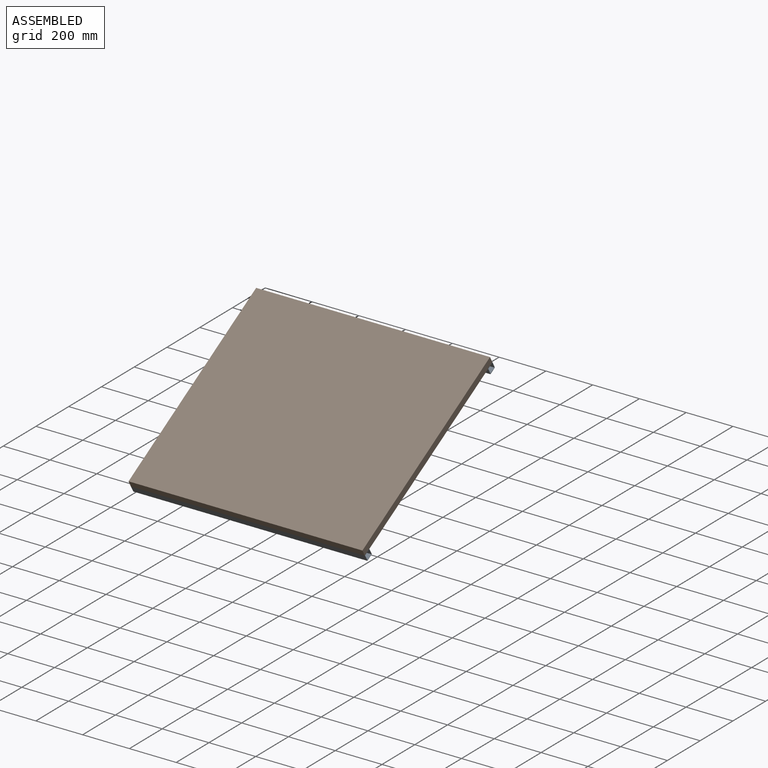
[diagram: assembled view]
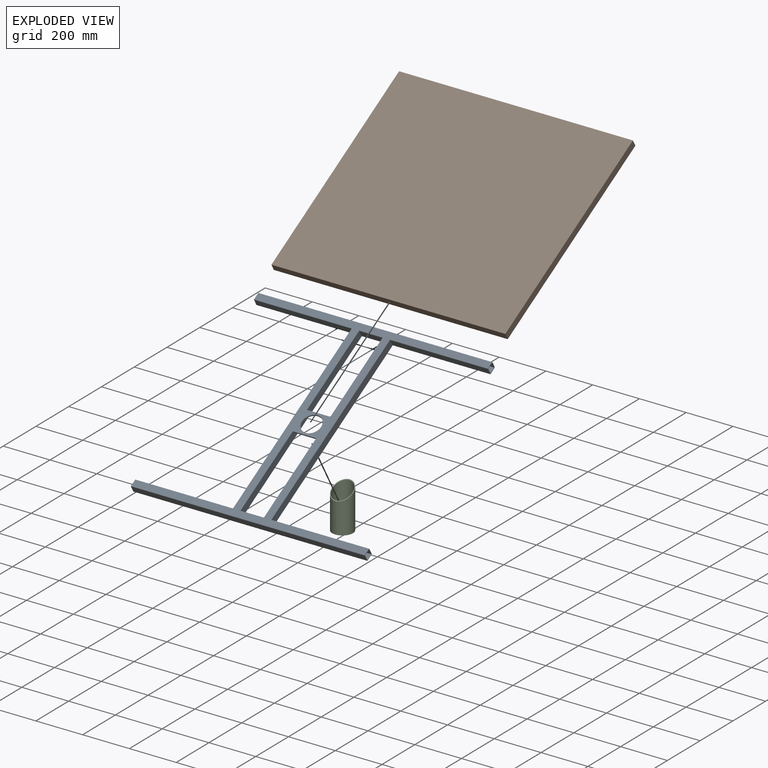
[diagram: exploded view]
GUIDED TOUR — MATED ASSEMBLY (Onshape document c7f52c63a3ec20beb6d5d1e3, AutoMate assembly c7f52c63a3ec20beb6d5d1e3_814e352ab854153cef78f4b2_82f58f986dd7bf3654ae3f0d_default)

This assembly has 3 components, labeled P0..P2 below (a component is one placed occurrence of a part; the same part can appear more than once), held together by 2 mates. A mate is a constraint between two components; its type names the relative motion it leaves free:
  FASTENED — locks the two components together rigidly (no relative motion),
  PLANAR — leaves sliding in the plane through the listed point (normal = the listed direction) and rotation about that normal free.
Axis/direction vectors are unit vectors and 'through' points are millimeter coordinates, both in the assembly's world frame.

MATES
  1. FASTENED "Fastened 1": P0 <-> P2, direction (0.000, 0.500, -0.866) through (-33.33, -36.92, -54.90) mm
  2. PLANAR "Planar 1": P1 <-> P0, direction (0.000, -0.866, -0.500) through (-33.33, -428.65, -276.40) mm

ASSEMBLY ORDER
  1. P1 — the base component [order verified]
  2. P0 [order verified]
  3. P2 [order verified]
Order-tag legend:
  [order verified] — this step's position reverses a verified removal order: the component was checked to insert without passing through the ones already placed.

Of the 3 components, 2 carry the full construction recipe — the FeatureScript program that regenerates the part's solid from scratch; the rest are supplied as boundary geometry only.
Each toured component is shown spotlighted twice — in the assembled view, then in the exploded view, where a leader line traces a displaced component back to its assembled socket (saturated green if recipe-attached, orange if geometry-only; every other component desaturated gray) — followed by its recipe or geometry summary and the mates that hold it.
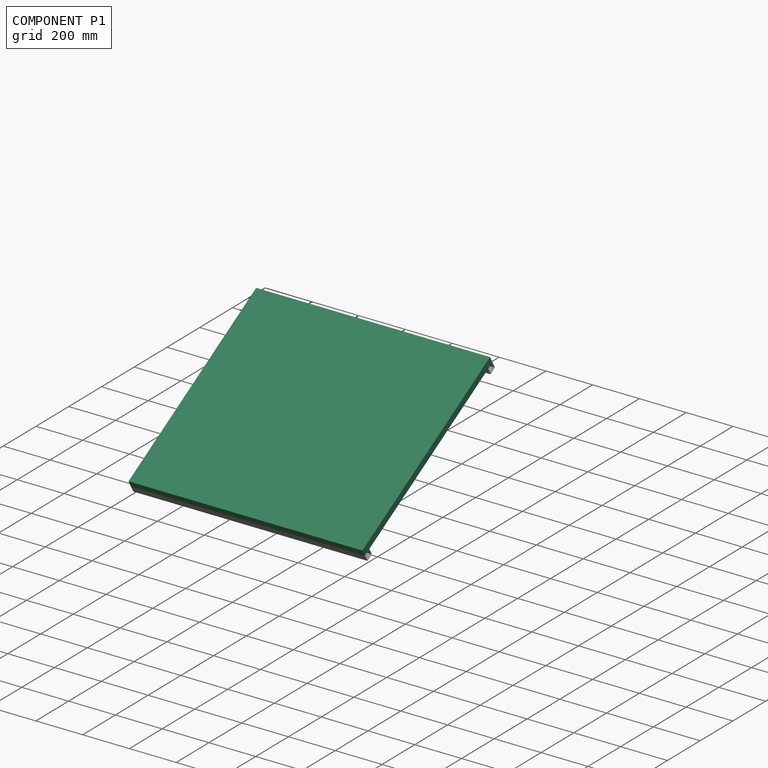
[diagram: component P1 — assembled]
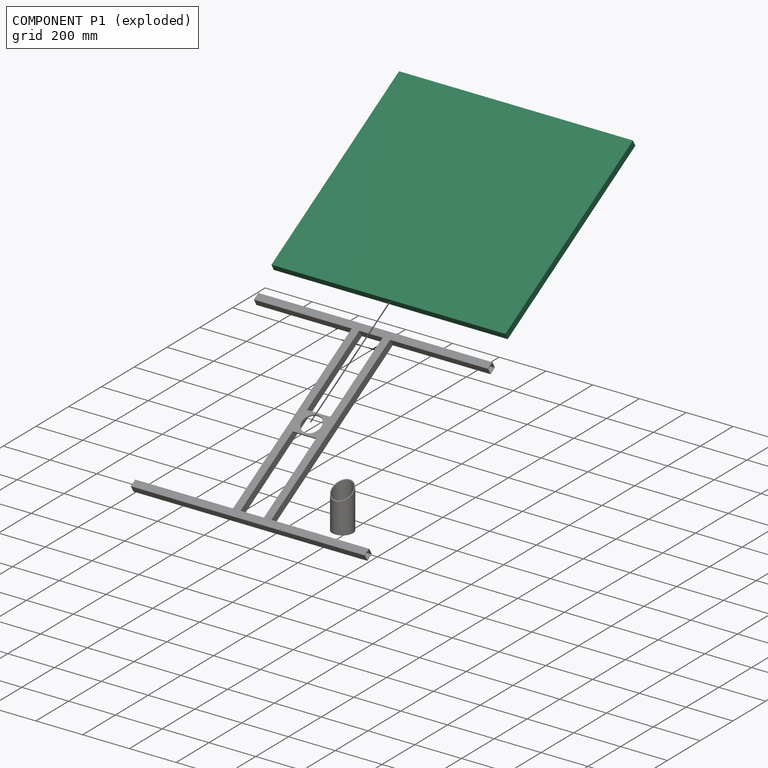
[diagram: component P1 — exploded]
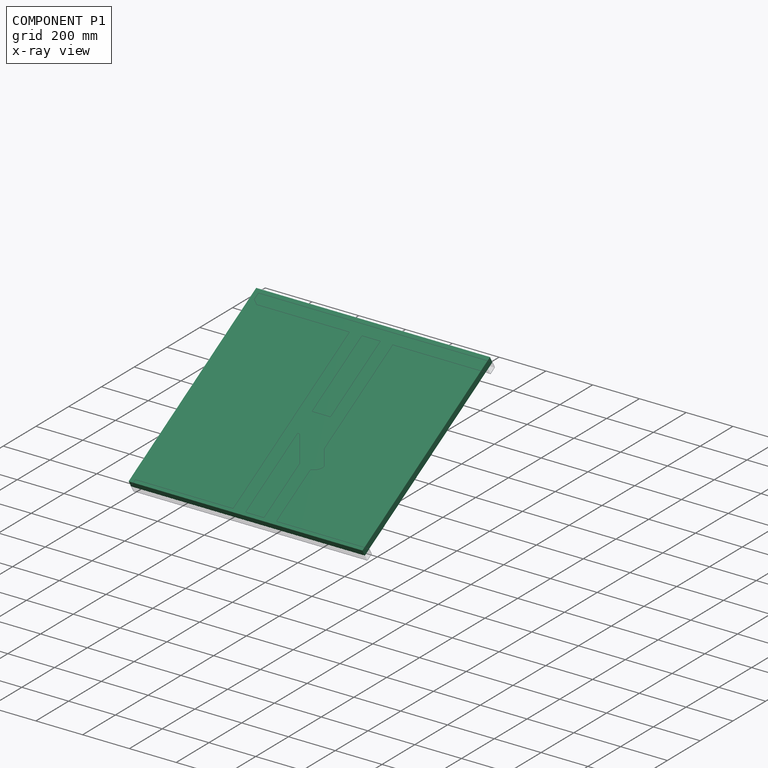
[diagram: component P1 — x-ray view]
COMPONENT P1 — recipe-attached (CADFS 00205374, mesh-verified: the recipe's output STEP matches this component's geometry to below the mesh-comparison resolution (tessellation chordal tolerance ~2.02 mm)).
Held by: PLANAR mate "Planar 1" to P0.
Construction recipe (FeatureScript — the CAD program that rebuilds this solid; sketch coordinates are in the units given by the * unit suffixes, e.g. mm):

FeatureScript 1511;
import(path : "onshape/std/geometry.fs", version : "1511.0");
import(path : "onshape/std/common.fs", version : "1511.0");
const mm = millimeter;
const VERTEX = EntityType.VERTEX;
const EDGE = EntityType.EDGE;
const FACE = EntityType.FACE;
const BODY = EntityType.BODY;
function v(x, y){return vector(x, y);}
function OD(order){return orderDisambiguation(order);}
function OSD(set){return originalSetDisambiguation(set);}
function TD(topology){return topologyDisambiguation(topology);}
function TDD(query){return trueDependencyDisambiguation(query);}
function sQuery(a, b, c) {return sketchEntityQuery(a, b, c);}

annotation { "Feature Type Name" : "Feature", "Feature Type Description" : "" }
export const myFeature = defineFeature(function(context is Context, id is Id, definition is map)
    precondition{}
    {
        {
            var Q0;
            Q0=qCreatedBy(makeId("Top.planeOp"),FACE);
            var sketch = newSketch(context, id + "F0", { "sketchPlane" : qUnion([Q0])});
            skLineSegment(sketch, "E0.bottom", {"start": v(-500, -450) * mm, "end": v(500, -450) * mm});
            skLineSegment(sketch, "E0.top", {"start": v(-500, 450) * mm, "end": v(500, 450) * mm});
            skLineSegment(sketch, "E0.left", {"start": v(-500, -450) * mm, "end": v(-500, 450) * mm});
            skLineSegment(sketch, "E0.right", {"start": v(500, -450) * mm, "end": v(500, 450) * mm});
            skPoint(sketch, "E0.middle", {"position": v(0, 0) * mm});
            skSolve(sketch);
        }
        {
            var Q0;
            Q0 = qSketchRegion(id + "F0", true);
            extrude(context, id + "F1", {"entities" : qUnion([Q0]), "depth" : 30 * mm});
        }
        {
            var Q0;
            Q0=makeQuery(id+"F1.opExtrude","CAP_FACE",FACE,{"disambiguationData":[OSD([sQuery(id+"F0.wireOp",EDGE,"E0.bottom"),sQuery(id+"F0.wireOp",EDGE,"E0.top"),sQuery(id+"F0.wireOp",EDGE,"E0.left"),sQuery(id+"F0.wireOp",EDGE,"E0.right")])],"isStart":true});
            var sketch = newSketch(context, id + "F2", { "sketchPlane" : qUnion([Q0])});
            skLineSegment(sketch, "E1.0", {"start": v(-500, -450) * mm, "end": v(500, -450) * mm});
            skLineSegment(sketch, "E1.1", {"start": v(500, 450) * mm, "end": v(500, -450) * mm});
            skLineSegment(sketch, "E1.2", {"start": v(-500, 450) * mm, "end": v(500, 450) * mm});
            skLineSegment(sketch, "E1.3", {"start": v(-500, 450) * mm, "end": v(-500, -450) * mm});
            skLineSegment(sketch, "E2.0", {"start": v(-475, 425) * mm, "end": v(-475, -425) * mm});
            skLineSegment(sketch, "E2.1", {"start": v(-475, 425) * mm, "end": v(475, 425) * mm});
            skLineSegment(sketch, "E2.2", {"start": v(475, 425) * mm, "end": v(475, -425) * mm});
            skLineSegment(sketch, "E2.3", {"start": v(-475, -425) * mm, "end": v(475, -425) * mm});
            skSolve(sketch);
        }
        {
            var Q0;
            Q0=makeQuery(id+"F2.imprint","IMPRINT",FACE,{"disambiguationData":[TD([[makeQuery(id+"F2.imprint","IMPRINT",EDGE,{"derivedFrom":sQuery(id+"F2.wireOp",EDGE,"E2.0")}),1.0]])]});
            extrude(context, id + "F3", {"entities" : qUnion([Q0]), "operationType" : NewBodyOperationType.REMOVE, "oppositeDirection" : true, "depth" : 25 * mm});
        }
    });
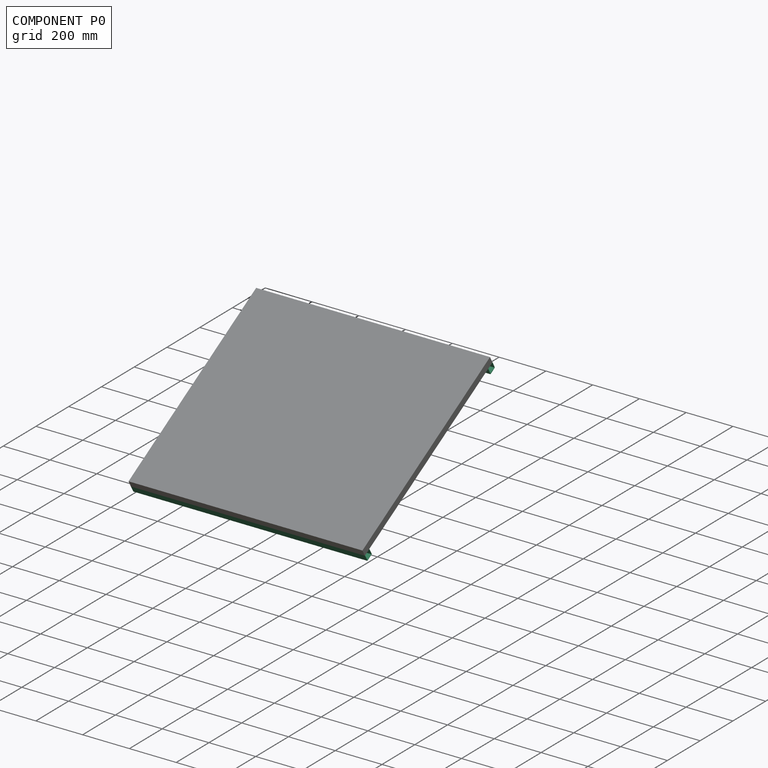
[diagram: component P0 — assembled]
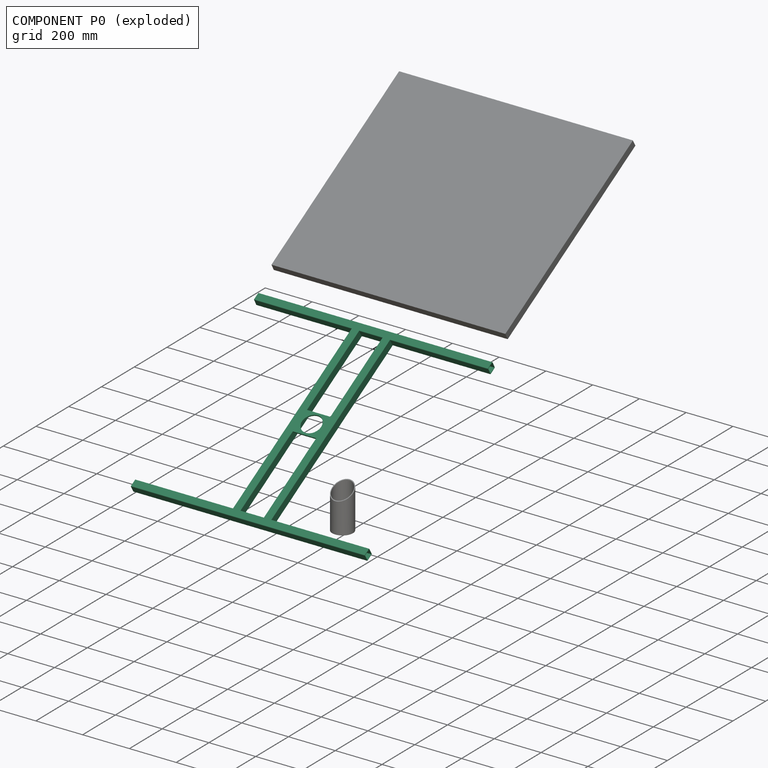
[diagram: component P0 — exploded]
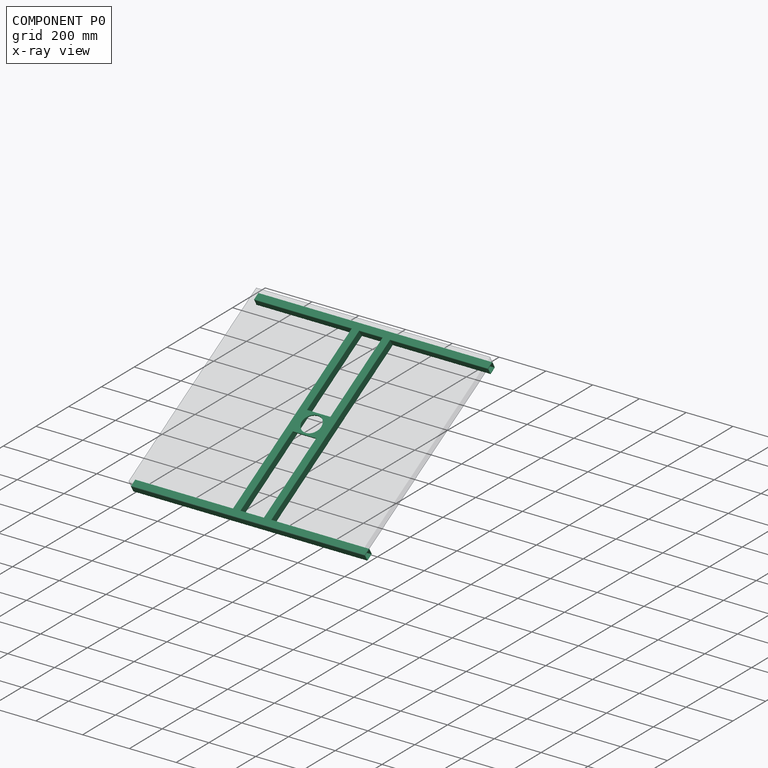
[diagram: component P0 — x-ray view]
COMPONENT P0 — recipe-attached (CADFS 00205375, mesh-verified: the recipe's output STEP matches this component's geometry to below the mesh-comparison resolution (tessellation chordal tolerance ~2.02 mm)).
Held by: FASTENED mate "Fastened 1" to P2; PLANAR mate "Planar 1" to P1.
Construction recipe (FeatureScript — the CAD program that rebuilds this solid; sketch coordinates are in the units given by the * unit suffixes, e.g. mm):

FeatureScript 1511;
import(path : "onshape/std/geometry.fs", version : "1511.0");
import(path : "onshape/std/common.fs", version : "1511.0");
const mm = millimeter;
const VERTEX = EntityType.VERTEX;
const EDGE = EntityType.EDGE;
const FACE = EntityType.FACE;
const BODY = EntityType.BODY;
function v(x, y){return vector(x, y);}
function OD(order){return orderDisambiguation(order);}
function OSD(set){return originalSetDisambiguation(set);}
function TD(topology){return topologyDisambiguation(topology);}
function TDD(query){return trueDependencyDisambiguation(query);}
function sQuery(a, b, c) {return sketchEntityQuery(a, b, c);}

annotation { "Feature Type Name" : "Feature", "Feature Type Description" : "" }
export const myFeature = defineFeature(function(context is Context, id is Id, definition is map)
    precondition{}
    {
        {
            var Q0;
            Q0=qCreatedBy(makeId("Right.planeOp"),FACE);
            var sketch = newSketch(context, id + "F0", { "sketchPlane" : qUnion([Q0])});
            skLineSegment(sketch, "E0.bottom", {"start": v(-448, -16) * mm, "end": v(-420, -16) * mm});
            skLineSegment(sketch, "E0.top", {"start": v(-448, 16) * mm, "end": v(-420, 16) * mm});
            skLineSegment(sketch, "E0.left", {"start": v(-450, -14) * mm, "end": v(-450, 14) * mm});
            skLineSegment(sketch, "E0.right", {"start": v(-418, -14) * mm, "end": v(-418, 14) * mm});
            skPoint(sketch, "E0.middle", {"position": v(-434, 0) * mm});
            skLineSegment(sketch, "E1.bottom", {"start": v(-448, 14) * mm, "end": v(-420, 14) * mm});
            skLineSegment(sketch, "E1.top", {"start": v(-448, -14) * mm, "end": v(-420, -14) * mm});
            skLineSegment(sketch, "E1.left", {"start": v(-448, 14) * mm, "end": v(-448, -14) * mm});
            skLineSegment(sketch, "E1.right", {"start": v(-420, 14) * mm, "end": v(-420, -14) * mm});
            skPoint(sketch, "E2.visualSharp", {"position": v(-450, 16) * mm});
            skArc(sketch, "E2.filletArc", {"start": v(-448, 16) * mm, "mid": v(-449.41, 15.41) * mm, "end": v(-450, 14) * mm});
            skPoint(sketch, "E3.visualSharp", {"position": v(-450, -16) * mm});
            skArc(sketch, "E3.filletArc", {"start": v(-450, -14) * mm, "mid": v(-449.41, -15.41) * mm, "end": v(-448, -16) * mm});
            skPoint(sketch, "E4.visualSharp", {"position": v(-418, -16) * mm});
            skArc(sketch, "E4.filletArc", {"start": v(-420, -16) * mm, "mid": v(-418.59, -15.41) * mm, "end": v(-418, -14) * mm});
            skPoint(sketch, "E5.visualSharp", {"position": v(-418, 16) * mm});
            skArc(sketch, "E5.filletArc", {"start": v(-418, 14) * mm, "mid": v(-418.59, 15.41) * mm, "end": v(-420, 16) * mm});
            skArc(sketch, "E6.MirrorCS", {"start": v(448, 16) * mm, "mid": v(449.41, 15.41) * mm, "end": v(450, 14) * mm});
            skArc(sketch, "E7.MirrorCS", {"start": v(450, -14) * mm, "mid": v(449.41, -15.41) * mm, "end": v(448, -16) * mm});
            skArc(sketch, "E8.MirrorCS", {"start": v(420, -16) * mm, "mid": v(418.59, -15.41) * mm, "end": v(418, -14) * mm});
            skArc(sketch, "E9.MirrorCS", {"start": v(418, 14) * mm, "mid": v(418.59, 15.41) * mm, "end": v(420, 16) * mm});
            skPoint(sketch, "E10.MirrorP", {"position": v(434, 0) * mm});
            skPoint(sketch, "E11.MirrorP", {"position": v(450, -16) * mm});
            skLineSegment(sketch, "E12.MirrorCS", {"start": v(448, -16) * mm, "end": v(420, -16) * mm});
            skLineSegment(sketch, "E13.MirrorCS", {"start": v(448, 16) * mm, "end": v(420, 16) * mm});
            skLineSegment(sketch, "E14.MirrorCS", {"start": v(450, -14) * mm, "end": v(450, 14) * mm});
            skLineSegment(sketch, "E15.MirrorCS", {"start": v(418, -14) * mm, "end": v(418, 14) * mm});
            skLineSegment(sketch, "E16.MirrorCS", {"start": v(448, 14) * mm, "end": v(420, 14) * mm});
            skLineSegment(sketch, "E17.MirrorCS", {"start": v(448, -14) * mm, "end": v(420, -14) * mm});
            skPoint(sketch, "E18.MirrorP", {"position": v(418, 16) * mm});
            skLineSegment(sketch, "E19.MirrorCS", {"start": v(448, 14) * mm, "end": v(448, -14) * mm});
            skPoint(sketch, "E20.MirrorP", {"position": v(450, 16) * mm});
            skLineSegment(sketch, "E21.MirrorCS", {"start": v(420, 14) * mm, "end": v(420, -14) * mm});
            skPoint(sketch, "E22.MirrorP", {"position": v(418, -16) * mm});
            skSolve(sketch);
        }
        {
            var Q0;
            Q0 = qSketchRegion(id + "F0", true);
            extrude(context, id + "F1", {"entities" : qUnion([Q0]), "endBound" : BoundingType.SYMMETRIC, "depth" : 1000 * mm});
        }
        {
            var Q0;
            Q0=qCreatedBy(makeId("Front.planeOp"),FACE);
            var sketch = newSketch(context, id + "F2", { "sketchPlane" : qUnion([Q0])});
            skLineSegment(sketch, "E23.bottom", {"start": v(-50, -50) * mm, "end": v(50, -50) * mm, "construction": true});
            skLineSegment(sketch, "E23.top", {"start": v(-50, 50) * mm, "end": v(50, 50) * mm, "construction": true});
            skLineSegment(sketch, "E23.right", {"start": v(50, -50) * mm, "end": v(50, 50) * mm, "construction": true});
            skPoint(sketch, "E23.middle", {"position": v(0, 0) * mm});
            skLineSegment(sketch, "E24.bottom", {"start": v(-50, -16.04) * mm, "end": v(-82, -16.04) * mm});
            skLineSegment(sketch, "E24.top", {"start": v(-50, 15.96) * mm, "end": v(-82, 15.96) * mm});
            skLineSegment(sketch, "E24.left", {"start": v(-50, -16.04) * mm, "end": v(-50, 15.96) * mm});
            skLineSegment(sketch, "E24.right", {"start": v(-82, -16.04) * mm, "end": v(-82, 15.96) * mm});
            skLineSegment(sketch, "E25.MirrorCS", {"start": v(82, -16.04) * mm, "end": v(82, 15.96) * mm});
            skLineSegment(sketch, "E26.MirrorCS", {"start": v(50, -16.04) * mm, "end": v(82, -16.04) * mm});
            skLineSegment(sketch, "E27.MirrorCS", {"start": v(50, 15.96) * mm, "end": v(82, 15.96) * mm});
            skLineSegment(sketch, "E28.MirrorCS", {"start": v(50, -16.04) * mm, "end": v(50, 15.96) * mm});
            skLineSegment(sketch, "E29.0", {"start": v(-52, -14.04) * mm, "end": v(-52, 13.96) * mm});
            skLineSegment(sketch, "E29.1", {"start": v(-52, -14.04) * mm, "end": v(-80, -14.04) * mm});
            skLineSegment(sketch, "E29.2", {"start": v(-80, -14.04) * mm, "end": v(-80, 13.96) * mm});
            skLineSegment(sketch, "E29.3", {"start": v(-52, 13.96) * mm, "end": v(-80, 13.96) * mm});
            skLineSegment(sketch, "E30.MirrorCS", {"start": v(52, -14.04) * mm, "end": v(52, 13.96) * mm});
            skLineSegment(sketch, "E31.MirrorCS", {"start": v(80, -14.04) * mm, "end": v(80, 13.96) * mm});
            skLineSegment(sketch, "E32.MirrorCS", {"start": v(52, 13.96) * mm, "end": v(80, 13.96) * mm});
            skLineSegment(sketch, "E33.MirrorCS", {"start": v(52, -14.04) * mm, "end": v(80, -14.04) * mm});
            skSolve(sketch);
        }
        {
            var Q0;
            Q0=makeQuery(id+"F2.imprint","IMPRINT",FACE,{"disambiguationData":[TD([[makeQuery(id+"F2.imprint","IMPRINT",EDGE,{"derivedFrom":sQuery(id+"F2.wireOp",EDGE,"E24.bottom")}),-1.0]])]});
            var Q1;
            Q1=makeQuery(id+"F2.imprint","IMPRINT",FACE,{"disambiguationData":[TD([[makeQuery(id+"F2.imprint","IMPRINT",EDGE,{"derivedFrom":sQuery(id+"F2.wireOp",EDGE,"E28.MirrorCS")}),-1.0]])]});
            extrude(context, id + "F3", {"entities" : qUnion([Q0, Q1]), "operationType" : NewBodyOperationType.ADD, "endBound" : BoundingType.SYMMETRIC, "depth" : 840.6 * mm});
        }
        {
            var Q0;
            Q0=makeQuery(id+"F3.opExtrude","SWEPT_FACE",FACE,{"disambiguationData":[OSD([sQuery(id+"F2.wireOp",EDGE,"E24.top")])]});
            var sketch = newSketch(context, id + "F4", { "sketchPlane" : qUnion([Q0])});
            skLineSegment(sketch, "E34.bottom", {"start": v(-50, -50) * mm, "end": v(50, -50) * mm});
            skLineSegment(sketch, "E34.top", {"start": v(-50, 50) * mm, "end": v(50, 50) * mm});
            skLineSegment(sketch, "E34.left", {"start": v(-50, -50) * mm, "end": v(-50, 50) * mm});
            skLineSegment(sketch, "E34.right", {"start": v(50, -50) * mm, "end": v(50, 50) * mm});
            skPoint(sketch, "E34.middle", {"position": v(0, 0) * mm});
            skSolve(sketch);
        }
        {
            var Q0;
            Q0=makeQuery(id+"F4.imprint","IMPRINT",FACE,{"disambiguationData":[TD([[makeQuery(id+"F4.imprint","IMPRINT",EDGE,{"derivedFrom":sQuery(id+"F4.wireOp",EDGE,"E34.bottom")}),1.0]])]});
            extrude(context, id + "F5", {"entities" : qUnion([Q0]), "operationType" : NewBodyOperationType.ADD, "oppositeDirection" : true, "depth" : 6 * mm});
        }
        {
            var Q0;
            Q0=makeQuery(id+"F5.boolean.opBoolean","MERGE",FACE,{"derivedFrom":[makeQuery(id+"F3.opExtrude","SWEPT_FACE",FACE,{"disambiguationData":[OSD([sQuery(id+"F2.wireOp",EDGE,"E24.top")])]}),makeQuery(id+"F3.opExtrude","SWEPT_FACE",FACE,{"disambiguationData":[OSD([sQuery(id+"F2.wireOp",EDGE,"E27.MirrorCS")])]}),makeQuery(id+"F5.opExtrude","CAP_FACE",FACE,{"disambiguationData":[OSD([sQuery(id+"F4.wireOp",EDGE,"E34.bottom"),sQuery(id+"F4.wireOp",EDGE,"E34.top"),sQuery(id+"F4.wireOp",EDGE,"E34.left"),sQuery(id+"F4.wireOp",EDGE,"E34.right")])],"isStart":true})]});
            var sketch = newSketch(context, id + "F6", { "sketchPlane" : qUnion([Q0])});
            skCircle(sketch, "E35", {"center": v(0, 0) * mm, "radius": 41 * mm});
            skSolve(sketch);
        }
        {
            var Q0;
            Q0 = qSketchRegion(id + "F6", true);
            extrude(context, id + "F7", {"entities" : qUnion([Q0]), "operationType" : NewBodyOperationType.REMOVE, "oppositeDirection" : true, "depth" : 25 * mm});
        }
    });
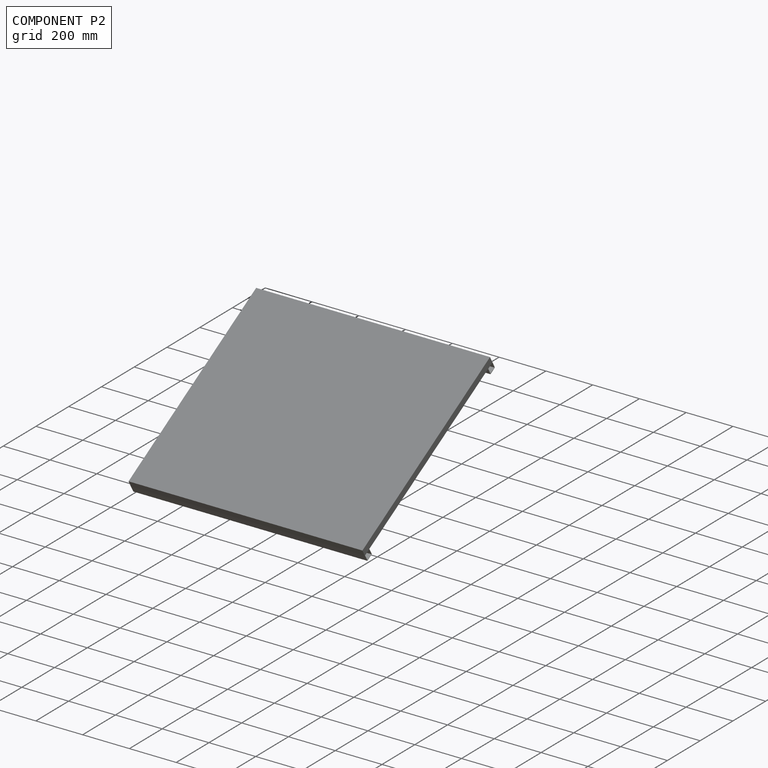
[diagram: component P2 — assembled]
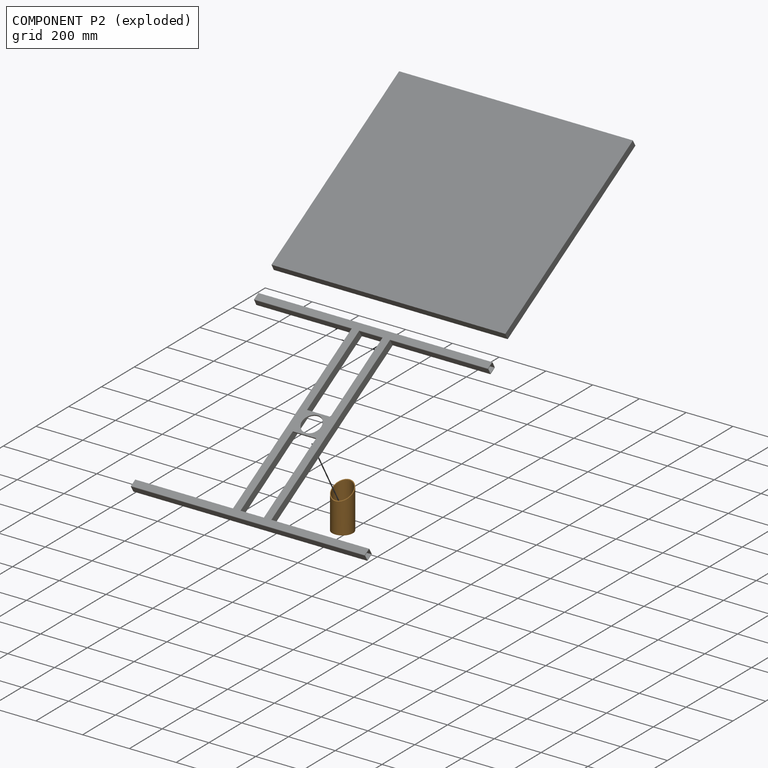
[diagram: component P2 — exploded]
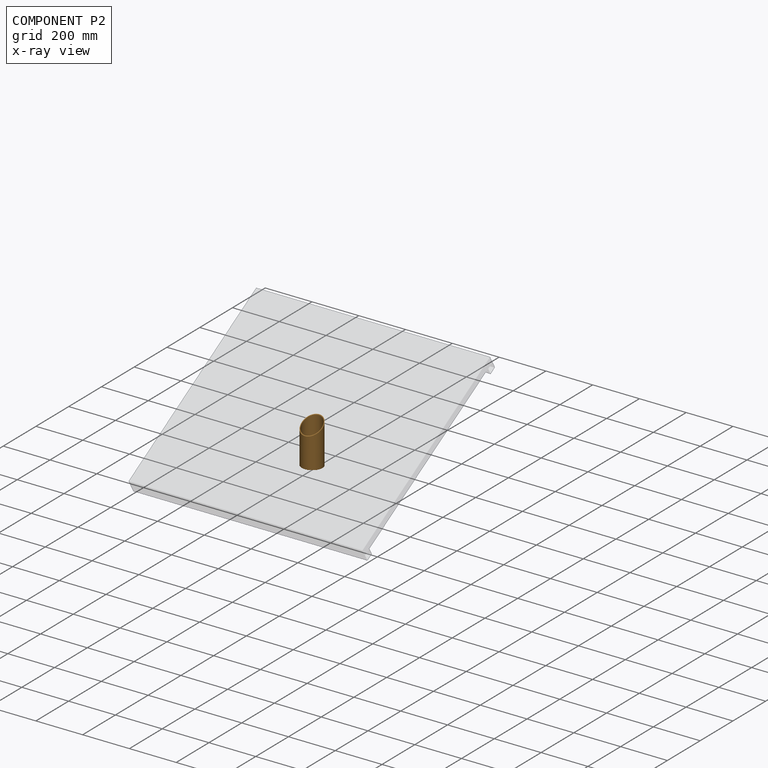
[diagram: component P2 — x-ray view]
COMPONENT P2 — geometry summary (no construction recipe available for this part):
  bounding box: 180.3 x 88.5 x 88.5 mm
  B-rep topology: 1 solid, 4 faces, 16 edges
  volume: 134401 mm^3 (10% of its bounding box)
  symmetry: mirror-symmetric across its x mid-plane
Held by: FASTENED mate "Fastened 1" to P0.
PROVENANCE & LICENSES
Assembly (occurrences, transforms, mates, per-part STEP geometry): AutoMate dataset, Zenodo record 7776208, CC0.
Construction recipes: CADFS (HuggingFace VladPyatov/CADFS, CC-BY-4.0, layered over the ABC dataset), FeatureScript reconstruction programs keyed by ABC model id.
Join: ABC meta listings map ABC model id -> Onshape documentId; within a shared document, parts are matched by geometric signature (bounding-box dims + volume at 0.1% relative tolerance, exact B-rep face/solid counts).
Verification: 2 of this assembly's 3 components carry a recipe attachment, and every attachment is mesh-verified: the CADFS STEP and the AutoMate member STEP were compared as meshes in their shared local frame (symmetric sampled-point-to-mesh distance); worst across the 2 attachments: below the mesh-comparison resolution (tessellation chordal tolerance ~2.02 mm) on a 1346 mm part.
Renders: orthographic iso camera (az 35 / el 25); the floor grid conveys scale (grid pitch printed in each image; no ruler). In the exploded view each component is displaced by its stored offset vector: the offsets alone carry the explosion direction (mate normal/axis signs are not orientation cues and do not encode it), and separation distances are assigned per mate-chain, not proportionally to assembly-order depth.
